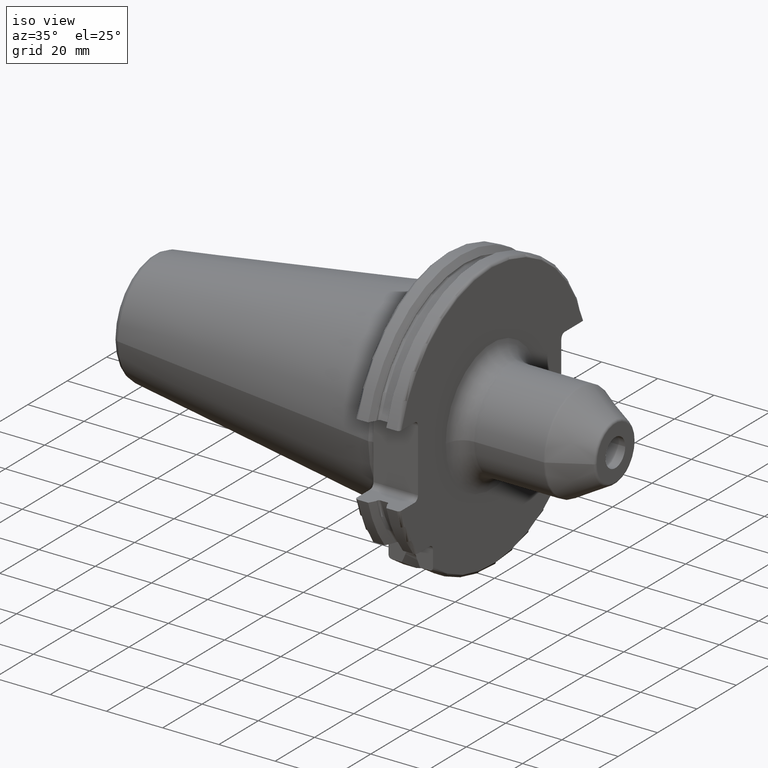
[diagram: clean part render]
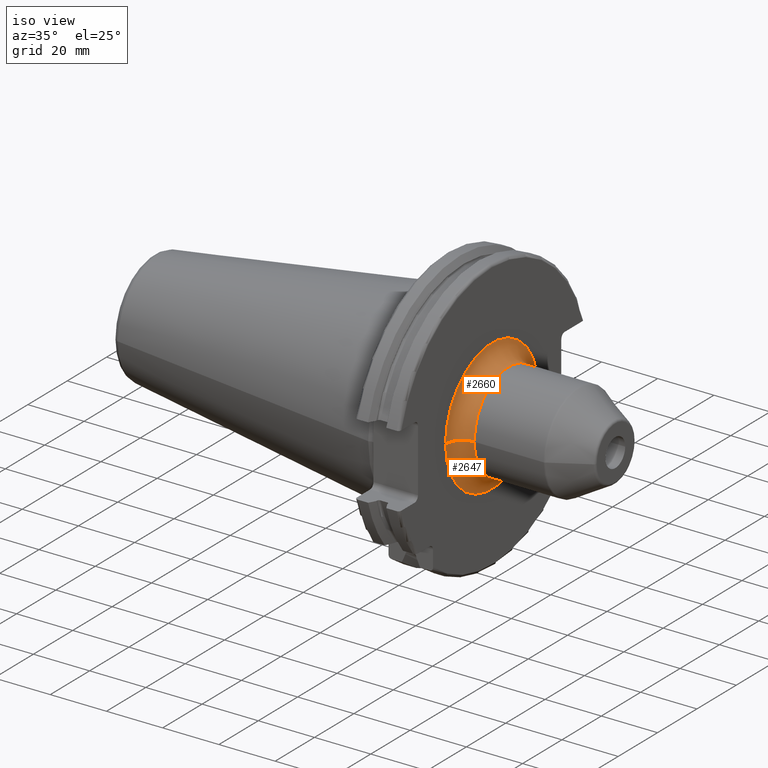
[diagram: same view with one multi-face feature highlighted, each face labeled with its STEP entity id]
A machine part, iso view. The highlighted faces form ONE feature: a constant-radius fillet chain: 2 tangent blend faces with common blend radius 6 mm. The faces share edges in the B-rep.
Their STEP definitions:
[1] entity #2647 (Torus):
#172=CARTESIAN_POINT('',(1.905E1,0.E0,0.E0));
#173=DIRECTION('',(1.E0,0.E0,0.E0));
#174=DIRECTION('',(0.E0,-1.E0,0.E0));
#175=AXIS2_PLACEMENT_3D('',#172,#173,#174);
#952=CARTESIAN_POINT('',(2.505E1,-2.35E1,1.589006703995E-12));
#953=DIRECTION('',(0.E0,-6.761605164662E-14,-1.E0));
#954=DIRECTION('',(-1.E0,1.480297366167E-14,0.E0));
#955=AXIS2_PLACEMENT_3D('',#952,#953,#954);
#957=CARTESIAN_POINT('',(2.505E1,2.35E1,-1.581484943003E-12));
#958=DIRECTION('',(0.E0,6.729512780357E-14,1.E0));
#959=DIRECTION('',(-1.E0,-1.480297366167E-14,0.E0));
#960=AXIS2_PLACEMENT_3D('',#957,#958,#959);
#1144=CARTESIAN_POINT('',(2.505E1,0.E0,0.E0));
#1145=DIRECTION('',(1.E0,0.E0,0.E0));
#1146=DIRECTION('',(0.E0,-1.E0,0.E0));
#1147=AXIS2_PLACEMENT_3D('',#1144,#1145,#1146);
#1617=CARTESIAN_POINT('',(1.905E1,-2.35E1,1.511635290696E-14));
#1618=CARTESIAN_POINT('',(1.905E1,2.35E1,-1.799427288496E-14));
#1619=VERTEX_POINT('',#1617);
#1620=VERTEX_POINT('',#1618);
#1621=CARTESIAN_POINT('',(2.505E1,-1.75E1,0.E0));
#1622=CARTESIAN_POINT('',(2.505E1,1.75E1,0.E0));
#1623=VERTEX_POINT('',#1621);
#1624=VERTEX_POINT('',#1622);
#2633=CARTESIAN_POINT('',(2.505E1,0.E0,0.E0));
#2634=DIRECTION('',(1.E0,0.E0,0.E0));
#2635=DIRECTION('',(0.E0,-9.999613968234E-1,8.786629791456E-3));
#2636=AXIS2_PLACEMENT_3D('',#2633,#2634,#2635);
#2637=TOROIDAL_SURFACE('',#2636,2.35E1,6.E0);
#2638=ORIENTED_EDGE('',*,*,#1880,.F.);
#2640=ORIENTED_EDGE('',*,*,#2639,.T.);
#2642=ORIENTED_EDGE('',*,*,#2641,.T.);
#2644=ORIENTED_EDGE('',*,*,#2643,.F.);
#2645=EDGE_LOOP('',(#2638,#2640,#2642,#2644));
#2646=FACE_OUTER_BOUND('',#2645,.F.);
#2647=ADVANCED_FACE('',(#2646),#2637,.F.);
#176=CIRCLE('',#175,2.35E1);
#956=CIRCLE('',#955,6.E0);
#961=CIRCLE('',#960,6.E0);
#1148=CIRCLE('',#1147,1.75E1);
#1880=EDGE_CURVE('',#1619,#1620,#176,.T.);
#2639=EDGE_CURVE('',#1619,#1623,#956,.T.);
#2641=EDGE_CURVE('',#1623,#1624,#1148,.T.);
#2643=EDGE_CURVE('',#1620,#1624,#961,.T.);
[2] entity #2660 (Torus):
#177=CARTESIAN_POINT('',(1.905E1,0.E0,0.E0));
#178=DIRECTION('',(1.E0,0.E0,0.E0));
#179=DIRECTION('',(0.E0,1.E0,0.E0));
#180=AXIS2_PLACEMENT_3D('',#177,#178,#179);
#952=CARTESIAN_POINT('',(2.505E1,-2.35E1,1.589006703995E-12));
#953=DIRECTION('',(0.E0,-6.761605164662E-14,-1.E0));
#954=DIRECTION('',(-1.E0,1.480297366167E-14,0.E0));
#955=AXIS2_PLACEMENT_3D('',#952,#953,#954);
#957=CARTESIAN_POINT('',(2.505E1,2.35E1,-1.581484943003E-12));
#958=DIRECTION('',(0.E0,6.729512780357E-14,1.E0));
#959=DIRECTION('',(-1.E0,-1.480297366167E-14,0.E0));
#960=AXIS2_PLACEMENT_3D('',#957,#958,#959);
#988=CARTESIAN_POINT('',(2.505E1,0.E0,0.E0));
#989=DIRECTION('',(1.E0,0.E0,0.E0));
#990=DIRECTION('',(0.E0,1.E0,0.E0));
#991=AXIS2_PLACEMENT_3D('',#988,#989,#990);
#1617=CARTESIAN_POINT('',(1.905E1,-2.35E1,1.511635290696E-14));
#1618=CARTESIAN_POINT('',(1.905E1,2.35E1,-1.799427288496E-14));
#1619=VERTEX_POINT('',#1617);
#1620=VERTEX_POINT('',#1618);
#1621=CARTESIAN_POINT('',(2.505E1,-1.75E1,0.E0));
#1622=CARTESIAN_POINT('',(2.505E1,1.75E1,0.E0));
#1623=VERTEX_POINT('',#1621);
#1624=VERTEX_POINT('',#1622);
#2648=CARTESIAN_POINT('',(2.505E1,0.E0,0.E0));
#2649=DIRECTION('',(1.E0,0.E0,0.E0));
#2650=DIRECTION('',(0.E0,9.999613968234E-1,-8.786629791456E-3));
#2651=AXIS2_PLACEMENT_3D('',#2648,#2649,#2650);
#2652=TOROIDAL_SURFACE('',#2651,2.35E1,6.E0);
#2653=ORIENTED_EDGE('',*,*,#1882,.F.);
#2654=ORIENTED_EDGE('',*,*,#2643,.T.);
#2656=ORIENTED_EDGE('',*,*,#2655,.T.);
#2657=ORIENTED_EDGE('',*,*,#2639,.F.);
#2658=EDGE_LOOP('',(#2653,#2654,#2656,#2657));
#2659=FACE_OUTER_BOUND('',#2658,.F.);
#2660=ADVANCED_FACE('',(#2659),#2652,.F.);
#181=CIRCLE('',#180,2.35E1);
#956=CIRCLE('',#955,6.E0);
#961=CIRCLE('',#960,6.E0);
#992=CIRCLE('',#991,1.75E1);
#1882=EDGE_CURVE('',#1620,#1619,#181,.T.);
#2639=EDGE_CURVE('',#1619,#1623,#956,.T.);
#2643=EDGE_CURVE('',#1620,#1624,#961,.T.);
#2655=EDGE_CURVE('',#1624,#1623,#992,.T.);